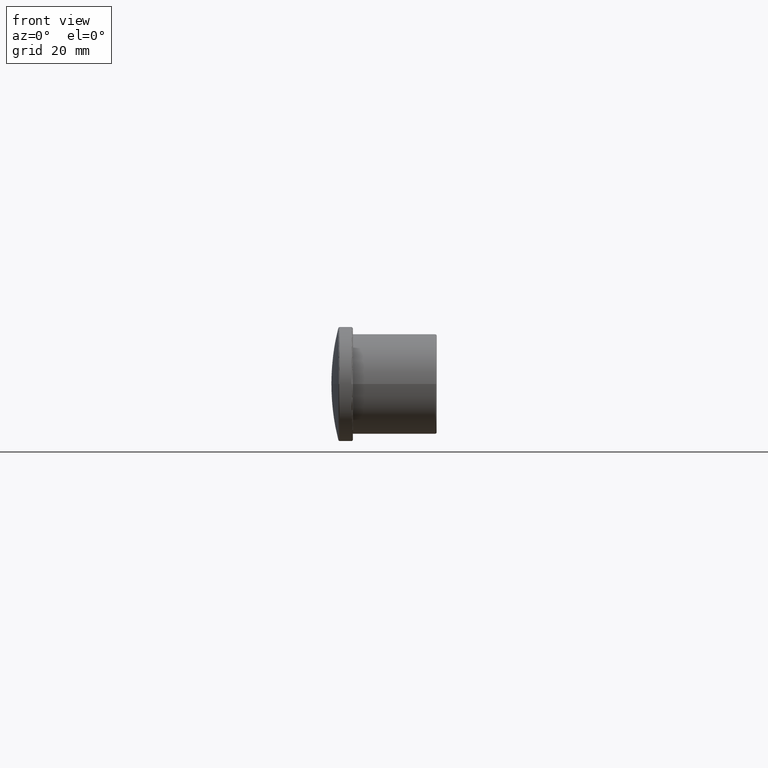
[diagram: clean part render]
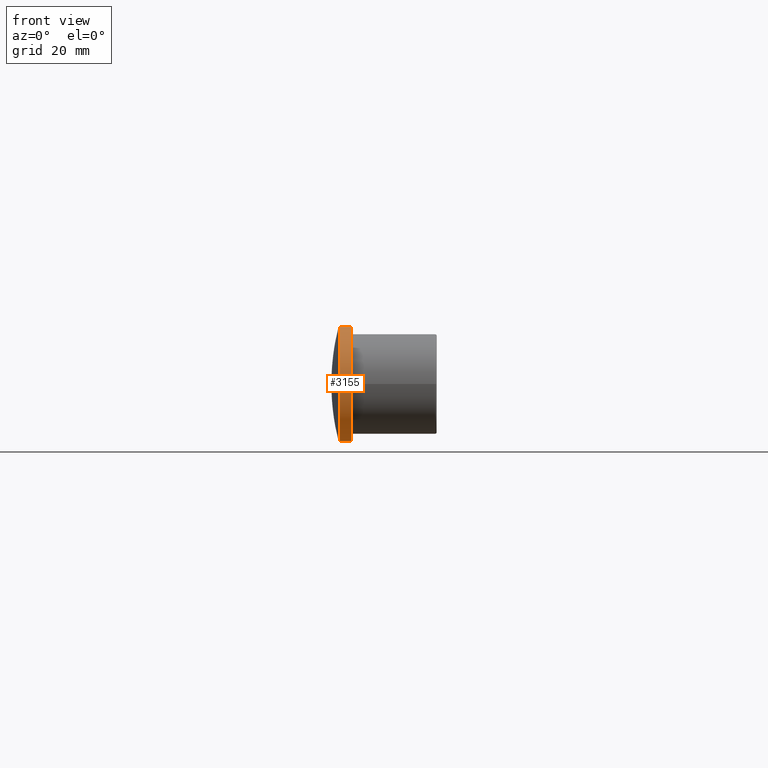
[diagram: same view with one face highlighted and labeled with its STEP entity id]
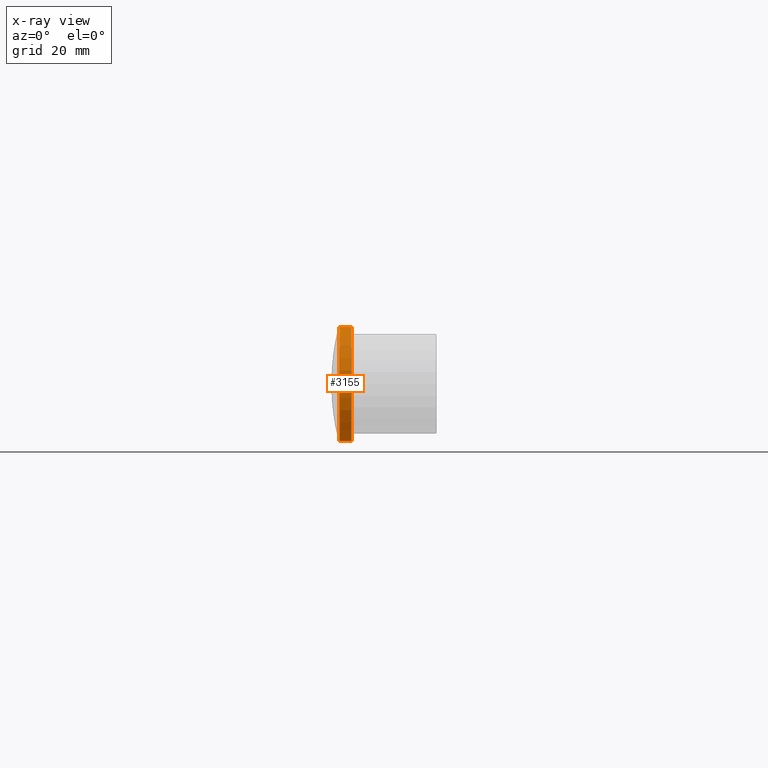
[diagram: x-ray of the same camera — body ghosted, the highlighted face saturated]
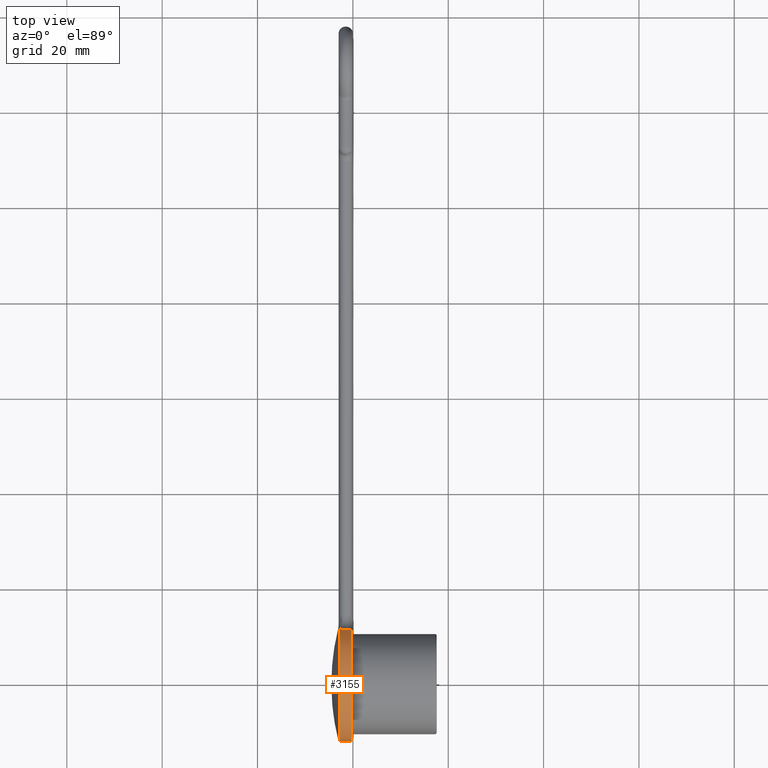
[diagram: same view with one face highlighted and labeled with its STEP entity id]
A machine part, front view. The second image highlights one B-rep face of the part: STEP entity #3155.
The next image is the same camera in x-ray: the body ghosted, the highlighted face saturated — about 0% of this face is hidden behind the body in this view.
A second angle (top view) of the same face is appended — the face is thin or edge-on in the first view.
In plain terms, the highlighted cylindrical surface (partial cylindrical patch) has radius 12 mm, axis along (1, 0, 0).
Its self-contained STEP definition (entity closure, byte-faithful):
#21=CARTESIAN_POINT('',(-3.000035520971E-1,1.148745550339E1,3.469636761557E0));
#27=CARTESIAN_POINT('',(-3.E-1,0.E0,0.E0));
#28=DIRECTION('',(-1.E0,0.E0,0.E0));
#29=DIRECTION('',(0.E0,-1.E0,0.E0));
#30=AXIS2_PLACEMENT_3D('',#27,#28,#29);
#46=CARTESIAN_POINT('',(-3.000035520971E-1,1.148745550339E1,3.469636761557E0));
#47=CARTESIAN_POINT('',(-4.332790315509E-1,1.147861729912E1,3.498898723188E0));
#48=CARTESIAN_POINT('',(-6.998717651364E-1,1.146369276104E1,3.547522232401E0));
#49=CARTESIAN_POINT('',(-1.100596287478E0,1.145022343235E1,3.590632421906E0));
#50=CARTESIAN_POINT('',(-1.366925346320E0,1.144723509824E1,3.600109273227E0));
#51=CARTESIAN_POINT('',(-1.499999758809E0,1.144727079432E1,3.599995766951E0));
#59=CARTESIAN_POINT('',(-3.000049973931E-1,1.148745617261E1,-3.469635175019E0));
#60=CARTESIAN_POINT('',(-4.318635127305E-1,1.147868174014E1,-3.498685997848E0));
#61=CARTESIAN_POINT('',(-6.965522851506E-1,1.146384388725E1,-3.547033752874E0));
#62=CARTESIAN_POINT('',(-1.096198262122E0,1.145031081875E1,-3.590353517997E0));
#63=CARTESIAN_POINT('',(-1.365035574836E0,1.144727329282E1,-3.599990734544E0));
#64=CARTESIAN_POINT('',(-1.500000249E0,1.144727174706E1,-3.599995649746E0));
#66=CARTESIAN_POINT('',(-1.500000249E0,1.144727174706E1,-3.599995649746E0));
#67=CARTESIAN_POINT('',(-1.642999323110E0,1.144728085856E1,-3.599966677015E0));
#68=CARTESIAN_POINT('',(-1.927442843351E0,1.145068034454E1,-3.589185452205E0));
#69=CARTESIAN_POINT('',(-2.349035201400E0,1.146579294041E1,-3.540763238396E0));
#70=CARTESIAN_POINT('',(-2.627535889981E0,1.148227463846E1,-3.486920165741E0));
#71=CARTESIAN_POINT('',(-2.766082631773E0,1.149199810446E1,-3.454574080357E0));
#73=CARTESIAN_POINT('',(-2.766082664283E0,1.149199449693E1,3.454571548527E0));
#74=CARTESIAN_POINT('',(-2.627146823560E0,1.148224949378E1,3.486989279397E0));
#75=CARTESIAN_POINT('',(-2.348126949008E0,1.146574336225E1,3.540929917852E0));
#76=CARTESIAN_POINT('',(-1.926511447359E0,1.145066318551E1,3.589239230221E0));
#77=CARTESIAN_POINT('',(-1.642599445732E0,1.144727277647E1,3.599989464111E0));
#78=CARTESIAN_POINT('',(-1.499999758809E0,1.144727079432E1,3.599995766951E0));
#86=CARTESIAN_POINT('',(-3.E-1,0.E0,0.E0));
#87=DIRECTION('',(-1.E0,0.E0,0.E0));
#88=DIRECTION('',(0.E0,9.572878355018E-1,-2.891366458965E-1));
#89=AXIS2_PLACEMENT_3D('',#86,#87,#88);
#700=CARTESIAN_POINT('',(-2.766087672200E0,0.E0,0.E0));
#701=DIRECTION('',(1.E0,0.E0,0.E0));
#702=DIRECTION('',(0.E0,9.576660934996E-1,2.878813181872E-1));
#703=AXIS2_PLACEMENT_3D('',#700,#701,#702);
#715=CARTESIAN_POINT('',(-2.766087672200E0,0.E0,0.E0));
#716=DIRECTION('',(1.E0,0.E0,0.E0));
#717=DIRECTION('',(0.E0,-1.E0,0.E0));
#718=AXIS2_PLACEMENT_3D('',#715,#716,#717);
#2754=VERTEX_POINT('',#21);
#2755=CARTESIAN_POINT('',(-3.E-1,-1.2E1,-4.201738002668E-12));
#2756=VERTEX_POINT('',#2755);
#2758=VERTEX_POINT('',#51);
#2760=CARTESIAN_POINT('',(-3.E-1,1.148745402602E1,-3.469639750757E0));
#2761=VERTEX_POINT('',#2760);
#2762=VERTEX_POINT('',#64);
#2763=VERTEX_POINT('',#71);
#2764=CARTESIAN_POINT('',(-2.766087672200E0,-1.200000000001E1,0.E0));
#2765=VERTEX_POINT('',#2764);
#2766=CARTESIAN_POINT('',(-2.766087672200E0,1.149199312200E1,3.454575818248E0));
#2767=VERTEX_POINT('',#2766);
#3134=CARTESIAN_POINT('',(-2.950423729507E0,0.E0,0.E0));
#3135=DIRECTION('',(1.E0,0.E0,0.E0));
#3136=DIRECTION('',(0.E0,-1.E0,0.E0));
#3137=AXIS2_PLACEMENT_3D('',#3134,#3135,#3136);
#3138=CYLINDRICAL_SURFACE('',#3137,1.2E1);
#3139=ORIENTED_EDGE('',*,*,#3124,.F.);
#3140=ORIENTED_EDGE('',*,*,#2989,.F.);
#3142=ORIENTED_EDGE('',*,*,#3141,.F.);
#3144=ORIENTED_EDGE('',*,*,#3143,.T.);
#3146=ORIENTED_EDGE('',*,*,#3145,.T.);
#3148=ORIENTED_EDGE('',*,*,#3147,.F.);
#3150=ORIENTED_EDGE('',*,*,#3149,.F.);
#3152=ORIENTED_EDGE('',*,*,#3151,.T.);
#3153=EDGE_LOOP('',(#3139,#3140,#3142,#3144,#3146,#3148,#3150,#3152));
#3154=FACE_OUTER_BOUND('',#3153,.F.);
#31=CIRCLE('',#30,1.2E1);
#52=B_SPLINE_CURVE_WITH_KNOTS('',3,(#46,#47,#48,#49,#50,#51),.UNSPECIFIED.,.F.,
.F.,(4,1,1,4),(0.E0,3.333333333333E-1,6.666666666667E-1,1.E0),.UNSPECIFIED.);
#65=B_SPLINE_CURVE_WITH_KNOTS('',3,(#59,#60,#61,#62,#63,#64),.UNSPECIFIED.,.F.,
.F.,(4,1,1,4),(0.E0,3.333333333333E-1,6.666666666667E-1,1.E0),.UNSPECIFIED.);
#72=B_SPLINE_CURVE_WITH_KNOTS('',3,(#66,#67,#68,#69,#70,#71),.UNSPECIFIED.,.F.,
.F.,(4,1,1,4),(0.E0,3.333333333333E-1,6.666666666667E-1,1.E0),.UNSPECIFIED.);
#79=B_SPLINE_CURVE_WITH_KNOTS('',3,(#73,#74,#75,#76,#77,#78),.UNSPECIFIED.,.F.,
.F.,(4,1,1,4),(0.E0,3.333333333333E-1,6.666666666667E-1,1.E0),.UNSPECIFIED.);
#90=CIRCLE('',#89,1.2E1);
#704=CIRCLE('',#703,1.2E1);
#719=CIRCLE('',#718,1.200000000001E1);
#2989=EDGE_CURVE('',#2756,#2754,#31,.T.);
#3124=EDGE_CURVE('',#2754,#2758,#52,.T.);
#3141=EDGE_CURVE('',#2761,#2756,#90,.T.);
#3143=EDGE_CURVE('',#2761,#2762,#65,.T.);
#3145=EDGE_CURVE('',#2762,#2763,#72,.T.);
#3147=EDGE_CURVE('',#2765,#2763,#719,.T.);
#3149=EDGE_CURVE('',#2767,#2765,#704,.T.);
#3151=EDGE_CURVE('',#2767,#2758,#79,.T.);
#3155=ADVANCED_FACE('',(#3154),#3138,.T.);